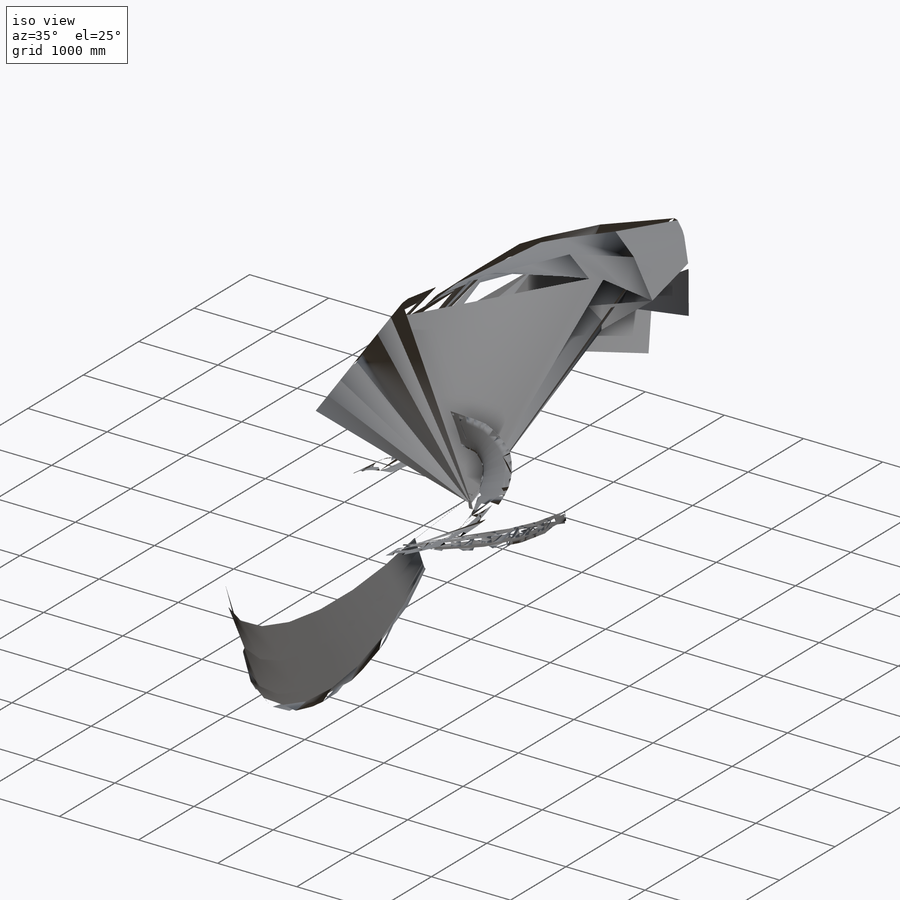
[diagram: iso view]
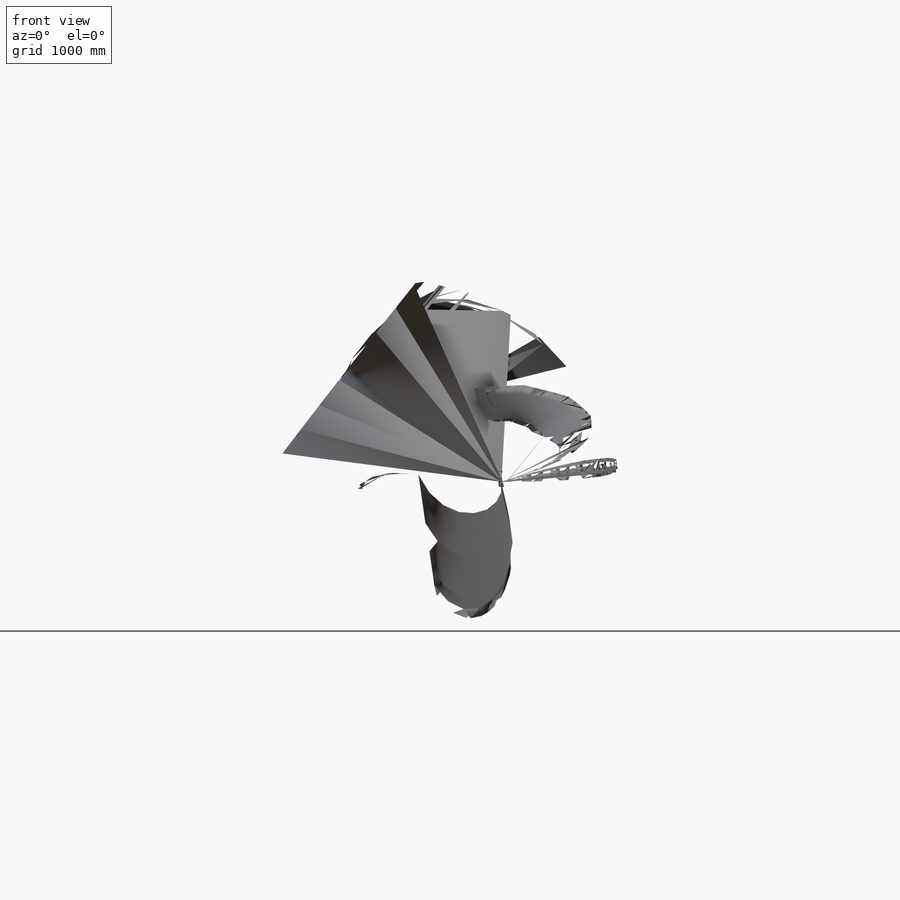
[diagram: front view]
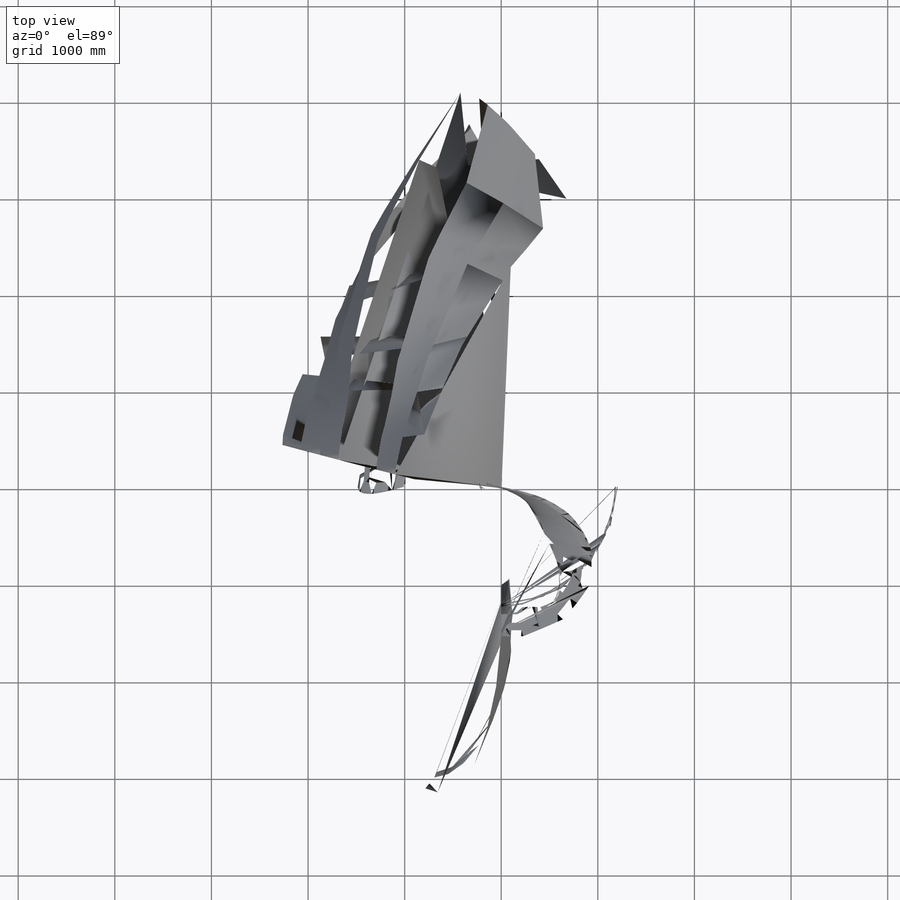
[diagram: top view]
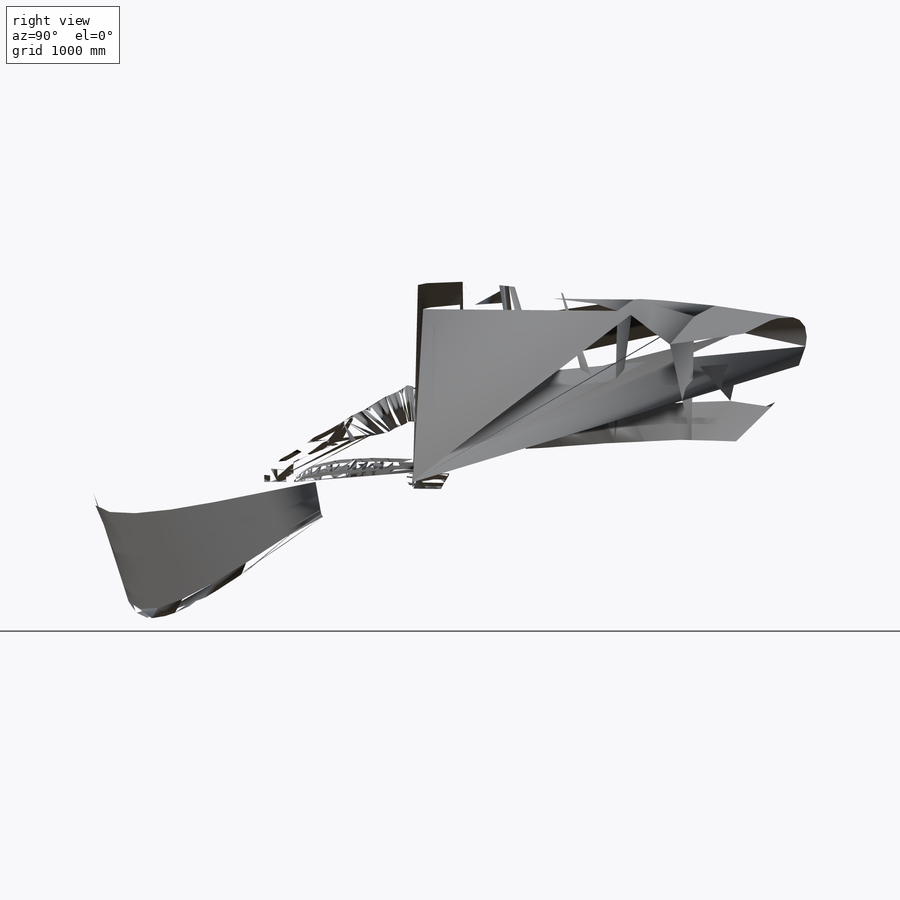
[diagram: right view]
SOLIDWORKS PART (.sldprt)
format: sldprt  version: not decoded by parser v0  size: 635,904 bytes
history: native  units: mm
features: sketch x15, fillet x9, cut_extrude x8, extrude x4, plane x2, material x1, move_body x1 (+13 scaffold rows collapsed; 1 parser-record rows omitted)
feature tree (54):
  scaffold x13  (default folders/planes/origin — collapsed)
  material  "Silicon Rubber"
  parser-record x1  (decoder bookkeeping rows leaked as tree rows — omitted from the tree; the rows remain in map.json)
  sketch  "Sketch1"  dims[D1=101.854mm D2=60.96mm]
  extrude  "Boss-Extrude1"  Depth=16.256mm
  sketch  "Sketch2"  dims[D1=102.87mm D2=2.794mm D3=31.75mm]
  cut_extrude  "Cut-Extrude1"  Depth=16.256mm
  fillet  "Fillet2"  Radius=3.81mm
  sketch  "Sketch7"  dims[D1=39.37mm]
  cut_extrude  "Cut-Extrude2"  Depth=9.906mm
  sketch  "Sketch8"  dims[c1.D1=47.625mm c1.D2=~101.908488mm c2.D2=~9.341261deg c3.D2=26.67mm]
  cut_extrude  "Cut-Extrude4"  Depth=9.906mm
  sketch  "Sketch9"  dims[c1.D1=20.32mm c2.D1=~23.948076mm c3.D1=~5.869549deg c4.D1=15.4432mm]
  cut_extrude  "Cut-Extrude5"  Depth=9.906mm
  fillet  "Fillet5"  Radius=3.81mm
  fillet  "Fillet6"  Radius=4.572mm
  sketch  "Sketch10"  dims[D1=47.498mm D2=2.286mm]
  sketch  "Sketch12"  dims[c1.D1=~2.618602mm c1.D6=~2.618602mm c2.D1=3.302mm c2.D2=13.462mm c2.D3=3.9116mm c2.D4=24.13mm c2.D5=20.32mm]
  cut_extrude  "Cut-Extrude7"  [1 undecoded]
  fillet  "Fillet7"  Radius=10.16mm
  fillet  "Fillet8"  Radius=6.35mm
  fillet  "Fillet9"  Radius=0.127mm
  sketch  "Sketch13"  dims[D2=8.9662mm D1=42.672mm]
  cut_extrude  "Cut-Extrude8"  [1 undecoded]
  sketch  "Sketch14"  dims[D2=8.9662mm D1=38.1mm]
  cut_extrude  "Cut-Extrude9"  [1 undecoded]
  fillet  "Fillet12"  Radius=6.35mm
  fillet  "Fillet18"  Radius=15.24mm
  fillet  "Fillet22"  Radius=5.334mm
  sketch  "Sketch15"
  cut_extrude  "Cut-Extrude10"  Depth=2.54mm
  move_body  "Body-Move/Copy1"
  plane  "Plane1"
  plane  "Plane2"  Offset=2.54mm
  sketch  "Sketch16"
  sketch  "Sketch17"
  sketch  "Sketch18"
  extrude  "Boss-Extrude2"  [1 undecoded]
  sketch  "Sketch19"
  extrude  "Boss-Extrude3"  Depth=2.54mm
  sketch  "Sketch20"
  extrude  "Boss-Extrude4"  Depth=2.54mm
decode coverage: 26 of 37 modeling features carry decoded parameters
note: ~ marks probable driven/reference dimensions
note: 4 parameter values undecoded
summary: no parameter record found for 4 features
note: suppression state not decoded; provenance and decode notes live in map.json
